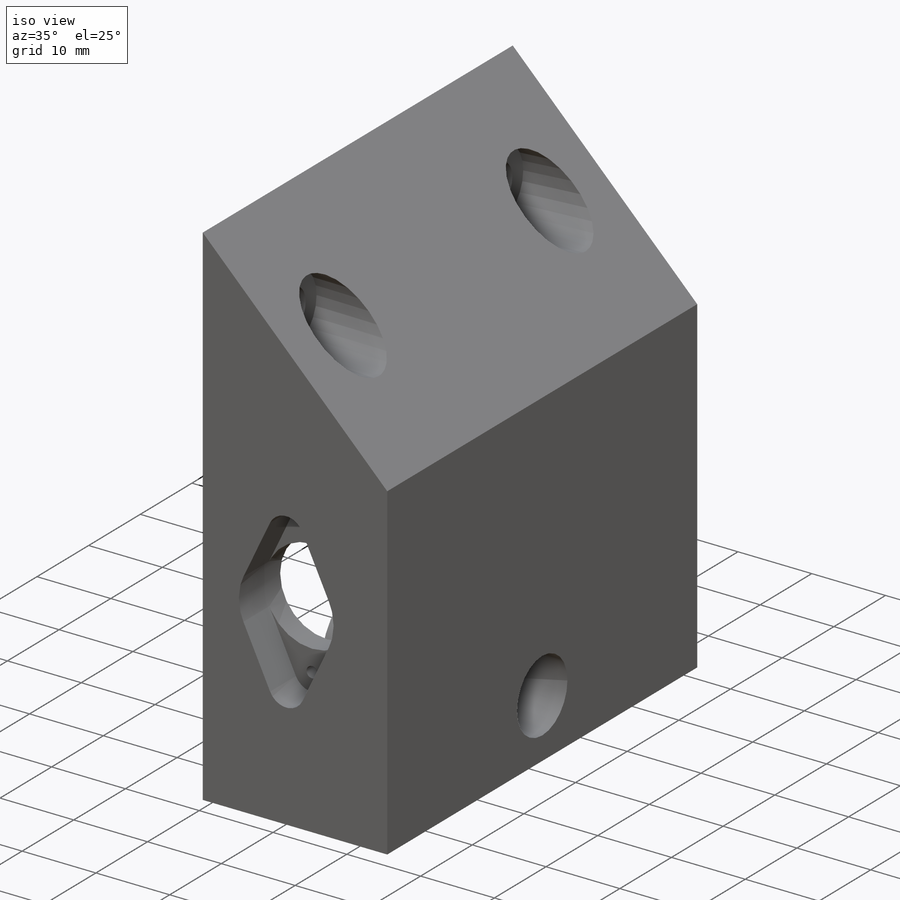
[diagram: iso view]
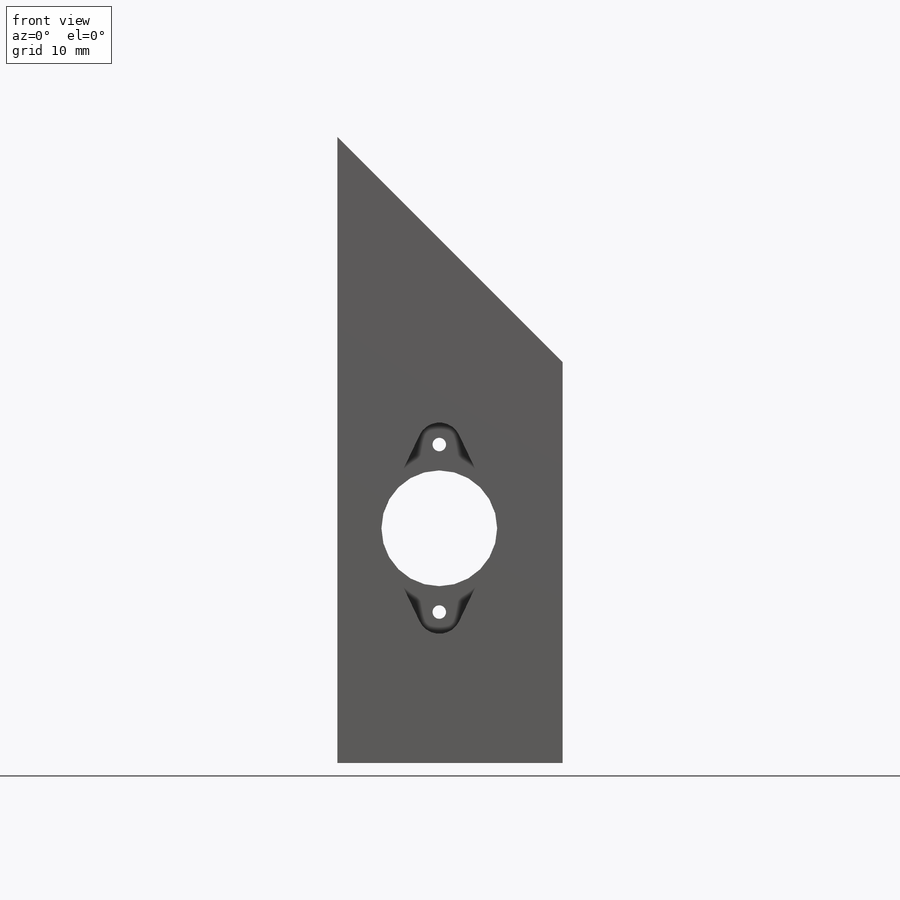
[diagram: front view]
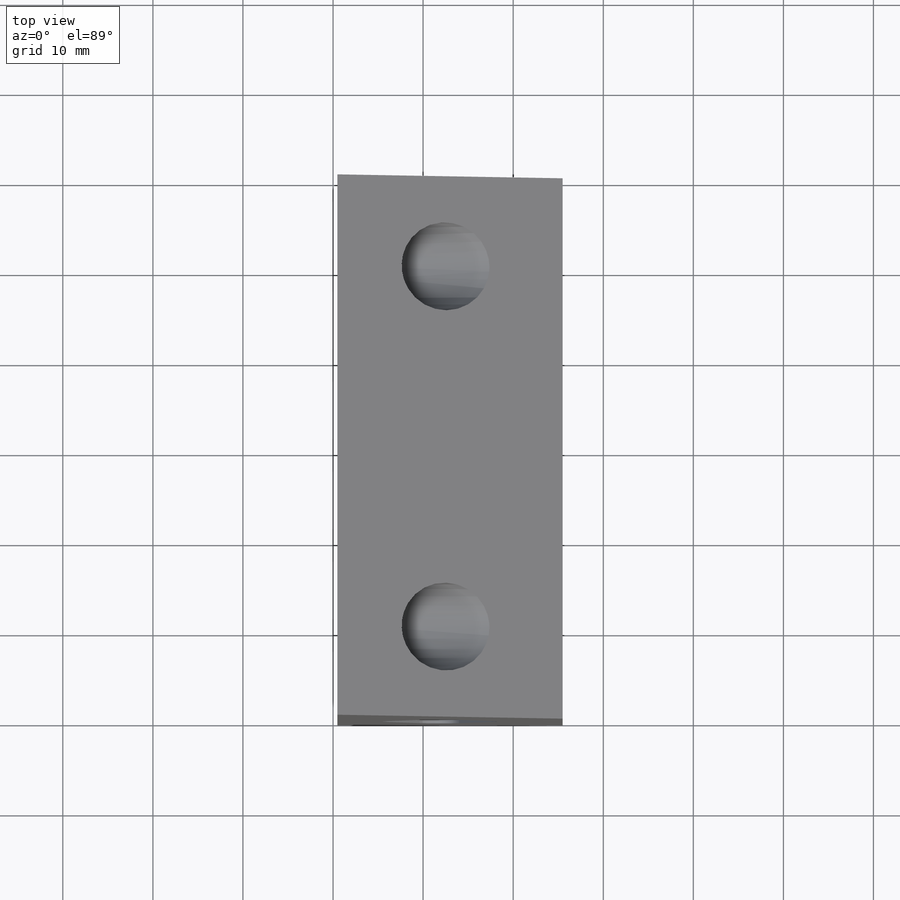
[diagram: top view]
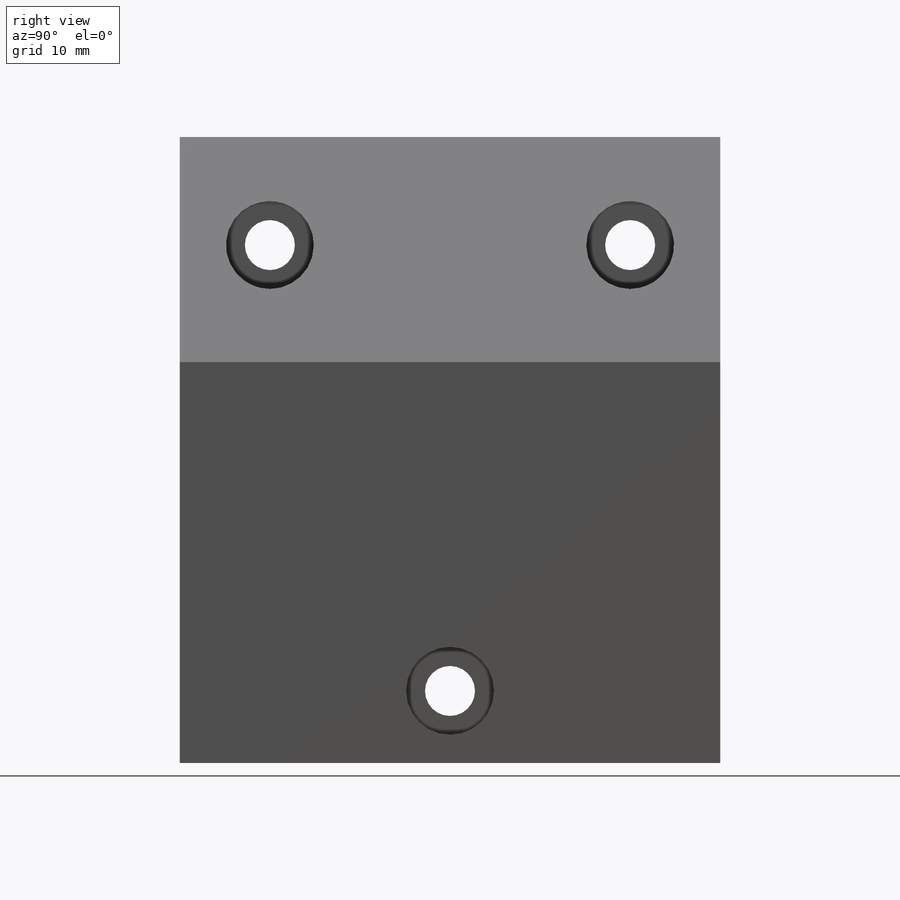
[diagram: right view]
SOLIDWORKS PART (.sldprt)
format: sldprt  version: not decoded by parser v0  size: 2,922,496 bytes
history: native  units: mm
features: sketch x13, cut_extrude x7, extrude x6, material x1 (+16 scaffold rows collapsed)
feature tree (43):
  scaffold x16  (default folders/planes/origin — collapsed)
  material  "Material <not specified>"
  sketch  "Sketch1"  dims[c1.D1=3.0mm c1.D3=~2.970084mm c2.D1=44.5mm c3.D1=29.0mm c3.D2=10.0mm]
  extrude  "Boss-Extrude1"  Depth=2mm
  sketch  "Sketch2"
  extrude  "Boss-Extrude2"  Depth=56mm
  sketch  "Sketch3"  dims[c1.D2=2.0mm c1.D1=21.0mm c2.D2=21.0mm]
  extrude  "Boss-Extrude3"  Depth=2mm
  sketch  "Sketch5"  dims[D1=8.0mm]
  sketch  "Sketch6"  dims[D2=7.0mm D3=15.5mm D1=0.0mm]
  extrude  "Boss-Extrude6"  [1 undecoded]
  sketch  "Sketch7"  dims[D1=~5.783521mm]
  cut_extrude  "Cut-Extrude2"  Depth=6mm
  sketch  "Sketch8"  dims[c1.D1=9.75mm c1.D2=5.55mm c1.D3=9.75mm c2.D1=10.0mm c2.D2=20.0mm c2.D3=12.0mm c2.D4=54.0mm]
  sketch  "Sketch9"
  extrude  "Boss-Extrude7"  [1 undecoded]
  sketch  "Sketch14"
  extrude  "Boss-Extrude8"  Depth=6mm
  sketch  "Sketch15"  dims[D1=0.125mm D2=0.125mm]
  cut_extrude  "Cut-Extrude11"  Depth=5mm
  sketch  "Sketch17"  dims[D1=~0.782657mm]
  cut_extrude  "Cut-Extrude13"  Depth=6mm
  sketch  "Sketch18"
  cut_extrude  "Cut-Extrude14"  Depth=6mm
  cut_extrude  "Cut-Extrude20"  Depth=20mm
  cut_extrude  "Cut-Extrude21"  [1 undecoded]
  sketch  "Sketch19"
  cut_extrude  "Cut-Extrude22"  [1 undecoded]
decode coverage: 17 of 26 modeling features carry decoded parameters
note: ~ marks probable driven/reference dimensions
note: 4 parameter values undecoded
summary: no parameter record found for 4 features
note: suppression state not decoded; provenance and decode notes live in map.json
